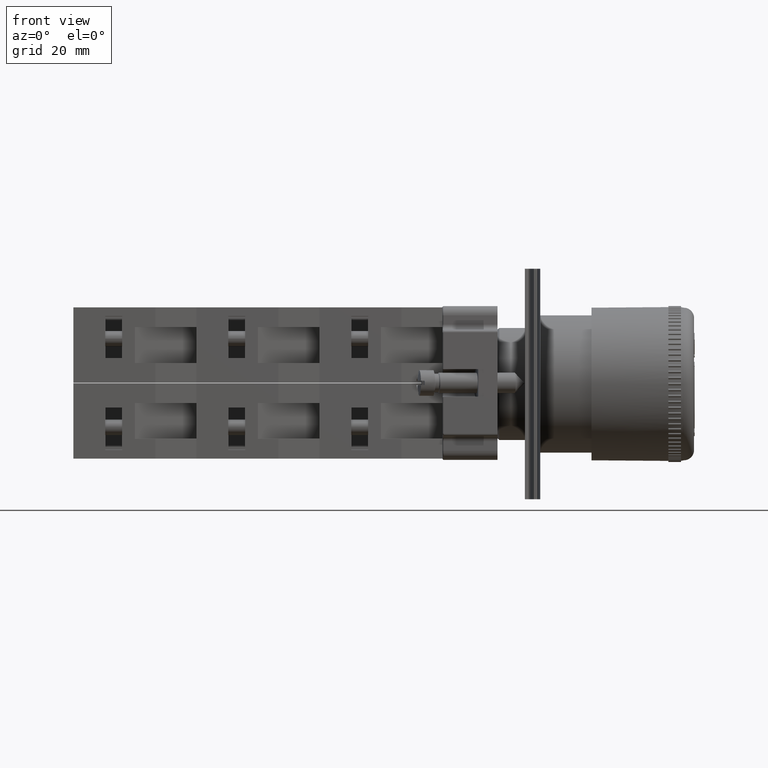
[diagram: clean part render]
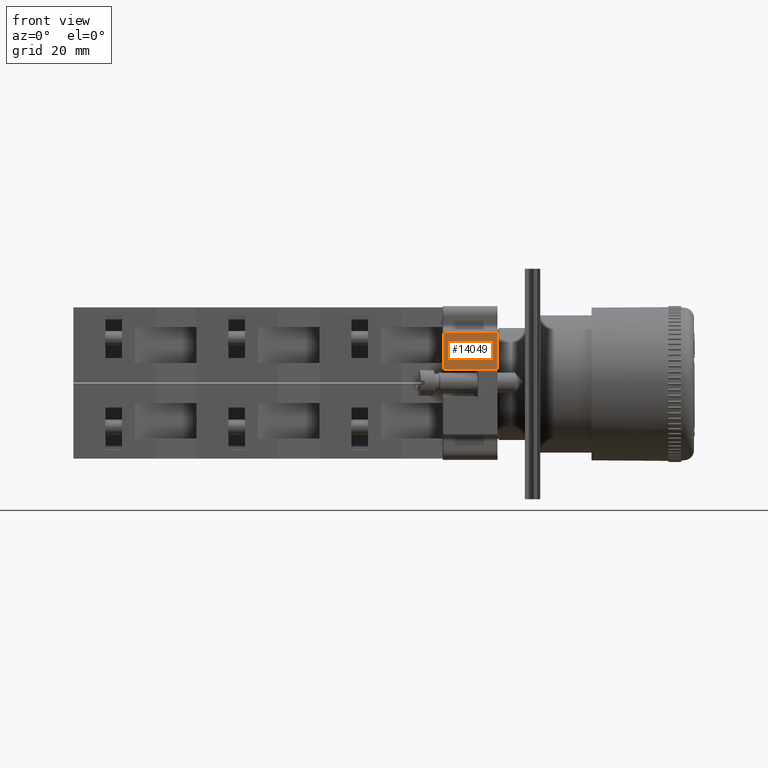
[diagram: same view with one face highlighted and labeled with its STEP entity id]
A machine part, front view. The second image highlights one B-rep face of the part: STEP entity #14049.
In plain terms, the highlighted planar face has unit normal (0, -1, 0).
Its self-contained STEP definition (entity closure, byte-faithful):
#9023=CARTESIAN_POINT('',(-18.982780308276109,0.267864828157553,10.500000000000000));
#9024=VERTEX_POINT('',#9023);
#9077=CARTESIAN_POINT('',(-18.982780308276109,7.467864828157554,10.500000000000000));
#9078=VERTEX_POINT('',#9077);
#9079=CARTESIAN_POINT('',(-18.982780308276109,7.467864828157554,10.500000000000000));
#9080=DIRECTION('',(0.0,-1.0,0.0));
#9081=VECTOR('',#9080,7.200000000000001);
#9082=LINE('',#9079,#9081);
#9083=EDGE_CURVE('',#9078,#9024,#9082,.T.);
#12553=CARTESIAN_POINT('',(-18.982780308276109,0.267864828157553,0.0));
#12554=VERTEX_POINT('',#12553);
#12562=CARTESIAN_POINT('',(-18.982780308276109,7.467864828157554,0.0));
#12563=VERTEX_POINT('',#12562);
#12564=CARTESIAN_POINT('',(-18.982780308276109,7.467864828157554,0.0));
#12565=DIRECTION('',(0.0,-1.0,0.0));
#12566=VECTOR('',#12565,7.200000000000001);
#12567=LINE('',#12564,#12566);
#12568=EDGE_CURVE('',#12563,#12554,#12567,.T.);
#14022=CARTESIAN_POINT('',(-18.982780308276109,0.267864828157553,0.0));
#14023=DIRECTION('',(0.0,0.0,1.0));
#14024=VECTOR('',#14023,10.500000000000000);
#14025=LINE('',#14022,#14024);
#14026=EDGE_CURVE('',#12554,#9024,#14025,.T.);
#14033=CARTESIAN_POINT('',(-18.982780308276109,0.267864828157553,0.0));
#14034=DIRECTION('',(-1.0,0.0,0.0));
#14035=DIRECTION('',(0.0,0.0,1.0));
#14036=AXIS2_PLACEMENT_3D('',#14033,#14034,#14035);
#14037=PLANE('',#14036);
#14038=ORIENTED_EDGE('',*,*,#9083,.F.);
#14039=CARTESIAN_POINT('',(-18.982780308276109,7.467864828157554,0.0));
#14040=DIRECTION('',(0.0,0.0,1.0));
#14041=VECTOR('',#14040,10.500000000000000);
#14042=LINE('',#14039,#14041);
#14043=EDGE_CURVE('',#12563,#9078,#14042,.T.);
#14044=ORIENTED_EDGE('',*,*,#14043,.F.);
#14045=ORIENTED_EDGE('',*,*,#12568,.T.);
#14046=ORIENTED_EDGE('',*,*,#14026,.T.);
#14047=EDGE_LOOP('',(#14038,#14044,#14045,#14046));
#14048=FACE_OUTER_BOUND('',#14047,.T.);
#14049=ADVANCED_FACE('',(#14048),#14037,.T.);